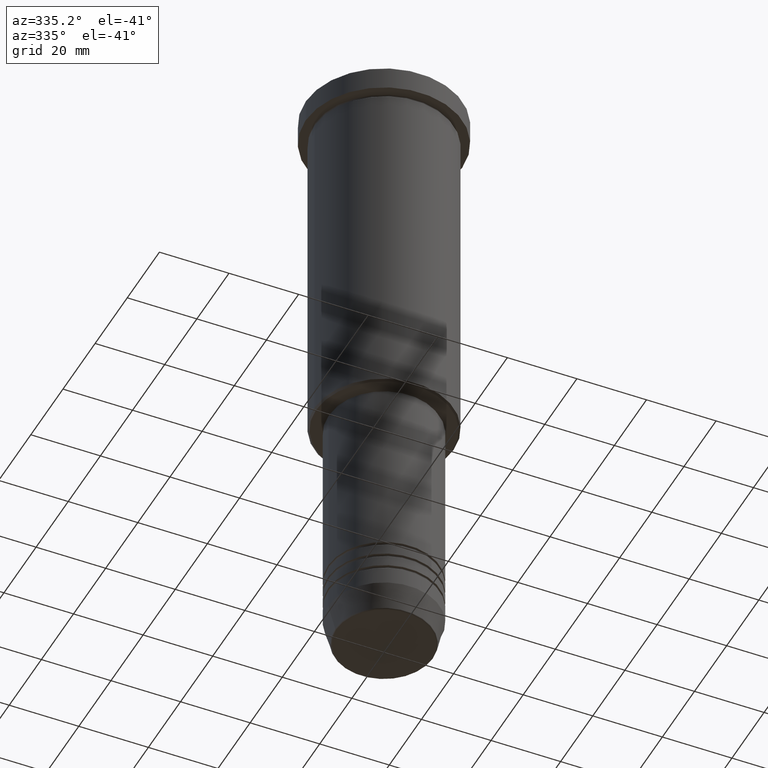
[diagram: clean part render]
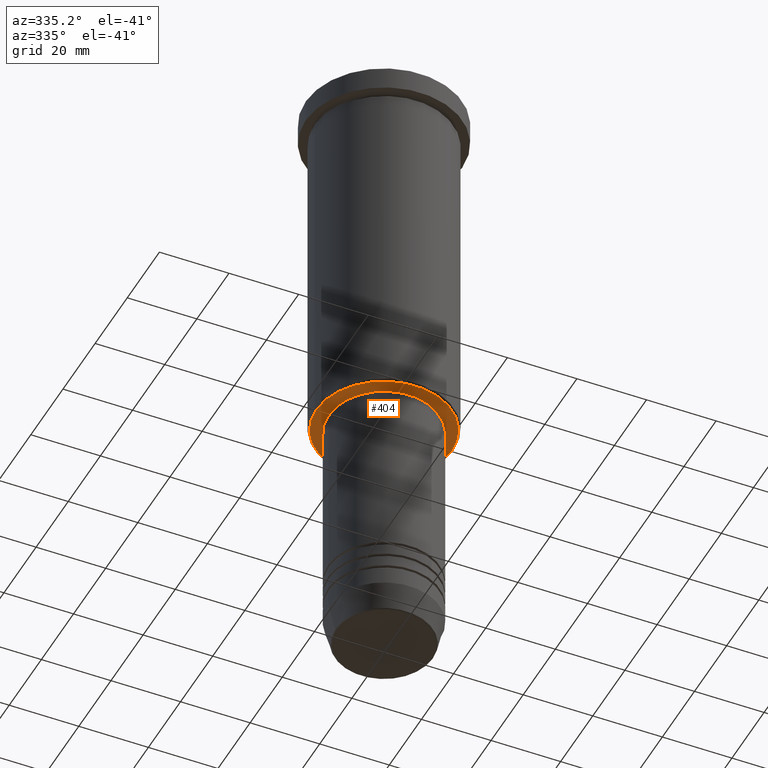
[diagram: same view with one face highlighted and labeled with its STEP entity id]
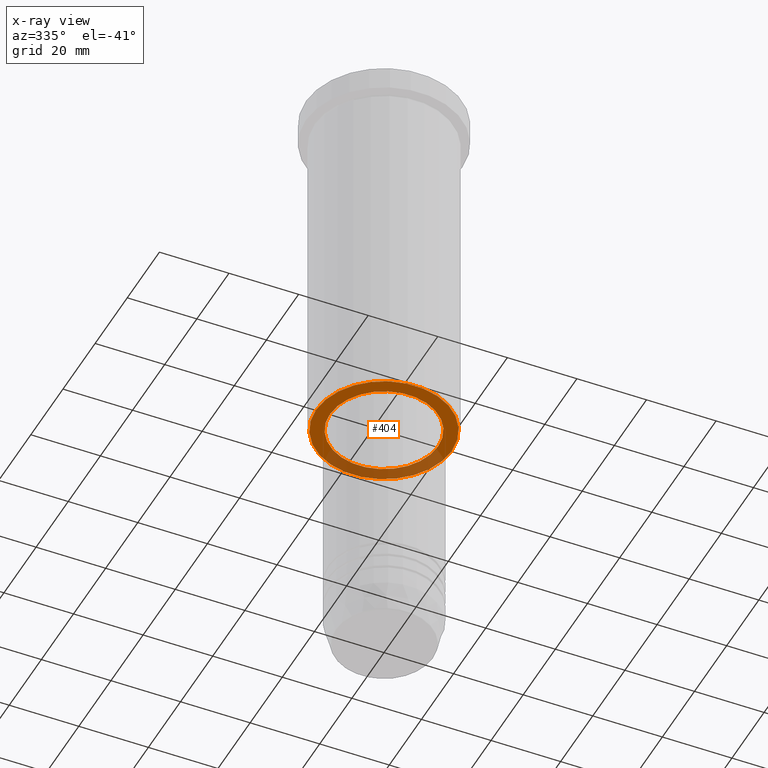
[diagram: x-ray of the same camera — body ghosted, the highlighted face saturated]
A machine part, auxiliary view. The second image highlights one B-rep face of the part: STEP entity #404.
The next image is the same camera in x-ray: the body ghosted, the highlighted face saturated — about 32% of this face is hidden behind the body in this view.
In plain terms, the highlighted planar face has unit normal (0, 0, -1).
Its self-contained STEP definition (entity closure, byte-faithful):
#7 = EDGE_CURVE ( 'NONE', #246, #374, #427, .T. ) ;
#10 = CARTESIAN_POINT ( 'NONE',  ( 15.50000000000000000, 0.000000000000000000, -105.9999999999999858 ) ) ;
#53 = PLANE ( 'NONE',  #1168 ) ;
#79 = ORIENTED_EDGE ( 'NONE', *, *, #873, .T. ) ;
#97 = AXIS2_PLACEMENT_3D ( 'NONE', #185, #828, #645 ) ;
#103 = CARTESIAN_POINT ( 'NONE',  ( -15.50000000000000000, 1.898202538678397557E-15, -105.9999999999999858 ) ) ;
#116 = AXIS2_PLACEMENT_3D ( 'NONE', #751, #379, #369 ) ;
#128 = DIRECTION ( 'NONE',  ( 0.000000000000000000, 0.000000000000000000, -1.000000000000000000 ) ) ;
#185 = CARTESIAN_POINT ( 'NONE',  ( 0.000000000000000000, 0.000000000000000000, -105.9999999999999858 ) ) ;
#198 = VERTEX_POINT ( 'NONE', #726 ) ;
#215 = ORIENTED_EDGE ( 'NONE', *, *, #7, .T. ) ;
#228 = ORIENTED_EDGE ( 'NONE', *, *, #1029, .T. ) ;
#246 = VERTEX_POINT ( 'NONE', #10 ) ;
#286 = AXIS2_PLACEMENT_3D ( 'NONE', #370, #454, #563 ) ;
#298 = CIRCLE ( 'NONE', #618, 15.50000000000000000 ) ;
#369 = DIRECTION ( 'NONE',  ( -1.000000000000000000, 0.000000000000000000, 0.000000000000000000 ) ) ;
#370 = CARTESIAN_POINT ( 'NONE',  ( 0.000000000000000000, 0.000000000000000000, -105.9999999999999858 ) ) ;
#372 = EDGE_CURVE ( 'NONE', #198, #718, #975, .T. ) ;
#374 = VERTEX_POINT ( 'NONE', #103 ) ;
#379 = DIRECTION ( 'NONE',  ( 0.000000000000000000, 0.000000000000000000, -1.000000000000000000 ) ) ;
#404 = ADVANCED_FACE ( 'NONE', ( #609, #518 ), #53, .T. ) ;
#424 = CARTESIAN_POINT ( 'NONE',  ( 0.000000000000000000, 20.00000000000000355, -105.9999999999999858 ) ) ;
#427 = CIRCLE ( 'NONE', #97, 15.50000000000000000 ) ;
#448 = CARTESIAN_POINT ( 'NONE',  ( 19.50000000000003197, 0.000000000000000000, -105.9999999999999858 ) ) ;
#454 = DIRECTION ( 'NONE',  ( 0.000000000000000000, 0.000000000000000000, -1.000000000000000000 ) ) ;
#484 = EDGE_LOOP ( 'NONE', ( #215, #79 ) ) ;
#518 = FACE_BOUND ( 'NONE', #484, .T. ) ;
#537 = DIRECTION ( 'NONE',  ( 1.000000000000000000, 0.000000000000000000, 0.000000000000000000 ) ) ;
#563 = DIRECTION ( 'NONE',  ( -1.000000000000000000, 0.000000000000000000, 0.000000000000000000 ) ) ;
#609 = FACE_OUTER_BOUND ( 'NONE', #1040, .T. ) ;
#618 = AXIS2_PLACEMENT_3D ( 'NONE', #791, #719, #537 ) ;
#645 = DIRECTION ( 'NONE',  ( 1.000000000000000000, 0.000000000000000000, 0.000000000000000000 ) ) ;
#718 = VERTEX_POINT ( 'NONE', #448 ) ;
#719 = DIRECTION ( 'NONE',  ( -0.000000000000000000, -0.000000000000000000, 1.000000000000000000 ) ) ;
#726 = CARTESIAN_POINT ( 'NONE',  ( -19.50000000000003197, 2.418677428316025092E-15, -105.9999999999999858 ) ) ;
#751 = CARTESIAN_POINT ( 'NONE',  ( 0.000000000000000000, 0.000000000000000000, -105.9999999999999858 ) ) ;
#791 = CARTESIAN_POINT ( 'NONE',  ( 0.000000000000000000, 0.000000000000000000, -105.9999999999999858 ) ) ;
#828 = DIRECTION ( 'NONE',  ( -0.000000000000000000, -0.000000000000000000, 1.000000000000000000 ) ) ;
#871 = DIRECTION ( 'NONE',  ( -1.000000000000000000, 0.000000000000000000, -0.000000000000000000 ) ) ;
#873 = EDGE_CURVE ( 'NONE', #374, #246, #298, .T. ) ;
#923 = ORIENTED_EDGE ( 'NONE', *, *, #372, .T. ) ;
#975 = CIRCLE ( 'NONE', #286, 19.50000000000003197 ) ;
#1029 = EDGE_CURVE ( 'NONE', #718, #198, #1182, .T. ) ;
#1040 = EDGE_LOOP ( 'NONE', ( #228, #923 ) ) ;
#1168 = AXIS2_PLACEMENT_3D ( 'NONE', #424, #128, #871 ) ;
#1182 = CIRCLE ( 'NONE', #116, 19.50000000000003197 ) ;